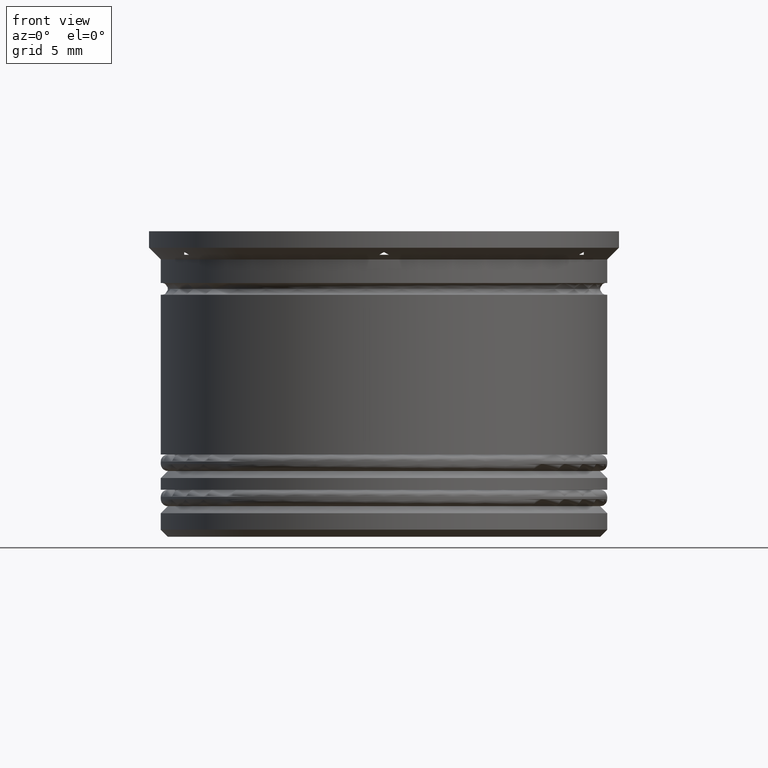
[diagram: clean part render]
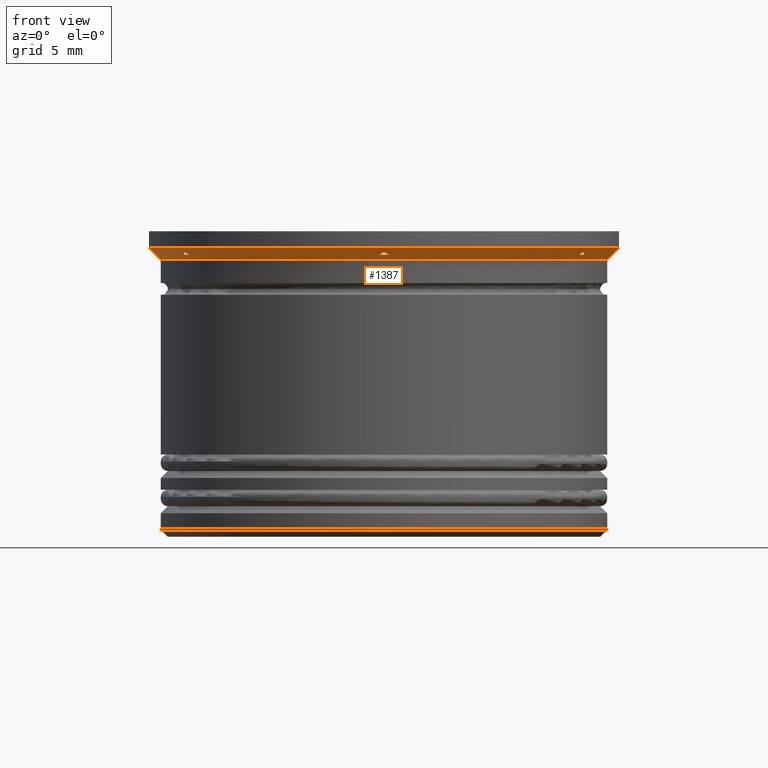
[diagram: same view with one face highlighted and labeled with its STEP entity id]
A machine part, front view. The second image highlights one B-rep face of the part: STEP entity #1387.
In plain terms, the highlighted conical surface has half-angle 45 deg.
Its self-contained STEP definition (entity closure, byte-faithful):
#5 = CARTESIAN_POINT ( 'NONE',  ( 0.000000000000000000, 0.000000000000000000, -1.199999999999999067 ) ) ;
#46 = CARTESIAN_POINT ( 'NONE',  ( -8.500000000000001776, -4.673328578219158480, -1.000000000000000000 ) ) ;
#47 = VECTOR ( 'NONE', #86, 1000.000000000000000 ) ;
#73 = ORIENTED_EDGE ( 'NONE', *, *, #1735, .F. ) ;
#84 = EDGE_CURVE ( 'NONE', #1053, #1356, #683, .T. ) ;
#86 = DIRECTION ( 'NONE',  ( 0.7071067811865487940, 0.000000000000000000, 0.7071067811865463515 ) ) ;
#90 = CARTESIAN_POINT ( 'NONE',  ( -8.500000000000001776, -4.907477288111819824, -0.8850454237763563103 ) ) ;
#93 = AXIS2_PLACEMENT_3D ( 'NONE', #1109, #1085, #1296 ) ;
#103 = CARTESIAN_POINT ( 'NONE',  ( -8.500000000000001776, -4.829775330622932294, -0.9238964025208137310 ) ) ;
#111 = DIRECTION ( 'NONE',  ( -0.7071067811865487940, 8.659560562354948882E-17, 0.7071067811865463515 ) ) ;
#148 = ORIENTED_EDGE ( 'NONE', *, *, #1124, .T. ) ;
#152 = DIRECTION ( 'NONE',  ( 1.000000000000000000, 0.000000000000000000, 0.000000000000000000 ) ) ;
#156 = CARTESIAN_POINT ( 'NONE',  ( 8.500000000000000000, -4.907477288111820712, -0.8850454237763569765 ) ) ;
#159 = VERTEX_POINT ( 'NONE', #46 ) ;
#162 = VERTEX_POINT ( 'NONE', #569 ) ;
#169 = CARTESIAN_POINT ( 'NONE',  ( -8.500000000000001776, -4.673328578219158480, -1.000000000000000000 ) ) ;
#185 = VERTEX_POINT ( 'NONE', #212 ) ;
#212 = CARTESIAN_POINT ( 'NONE',  ( 8.297221268969604324, -5.024551643058152273, -1.000000000000000000 ) ) ;
#249 = EDGE_CURVE ( 'NONE', #944, #159, #1692, .T. ) ;
#256 = AXIS2_PLACEMENT_3D ( 'NONE', #558, #772, #1777 ) ;
#292 = CARTESIAN_POINT ( 'NONE',  ( -9.499999999999998224, 1.163414459189985288E-15, -1.199999999999999067 ) ) ;
#315 = EDGE_CURVE ( 'NONE', #436, #185, #1554, .T. ) ;
#334 = CIRCLE ( 'NONE', #1286, 9.699999999999997513 ) ;
#364 = CARTESIAN_POINT ( 'NONE',  ( -0.06737994717715768689, -9.776052745582923365, -0.9239472544170721502 ) ) ;
#365 = ORIENTED_EDGE ( 'NONE', *, *, #649, .F. ) ;
#380 = ORIENTED_EDGE ( 'NONE', *, *, #607, .T. ) ;
#394 = ORIENTED_EDGE ( 'NONE', *, *, #1180, .T. ) ;
#422 = CARTESIAN_POINT ( 'NONE',  ( 10.00000000000000000, 0.000000000000000000, -0.6999999999999968470 ) ) ;
#436 = VERTEX_POINT ( 'NONE', #706 ) ;
#492 = EDGE_LOOP ( 'NONE', ( #885, #394, #891 ) ) ;
#499 = CARTESIAN_POINT ( 'NONE',  ( -8.365111701610439709, -4.985355083497564621, -0.9622312573273482661 ) ) ;
#514 = VERTEX_POINT ( 'NONE', #1442 ) ;
#536 = FACE_BOUND ( 'NONE', #1525, .T. ) ;
#547 = DIRECTION ( 'NONE',  ( 1.000000000000000000, 0.000000000000000000, 0.000000000000000000 ) ) ;
#558 = CARTESIAN_POINT ( 'NONE',  ( 0.000000000000000000, 0.000000000000000000, -1.000000000000000000 ) ) ;
#569 = CARTESIAN_POINT ( 'NONE',  ( 0.2027787310303974799, -9.697880221277310753, -1.000000000000000000 ) ) ;
#591 = VERTEX_POINT ( 'NONE', #1475 ) ;
#607 = EDGE_CURVE ( 'NONE', #162, #1595, #1630, .T. ) ;
#635 = DIRECTION ( 'NONE',  ( 1.000000000000000000, 0.000000000000000000, 0.000000000000000000 ) ) ;
#649 = EDGE_CURVE ( 'NONE', #2059, #159, #1819, .T. ) ;
#659 = CARTESIAN_POINT ( 'NONE',  ( 9.499999999999998224, 0.000000000000000000, -1.199999999999999067 ) ) ;
#665 = DIRECTION ( 'NONE',  ( -0.000000000000000000, -0.000000000000000000, 1.000000000000000000 ) ) ;
#675 = AXIS2_PLACEMENT_3D ( 'NONE', #2140, #2131, #635 ) ;
#683 = LINE ( 'NONE', #1360, #1519 ) ;
#692 = EDGE_CURVE ( 'NONE', #944, #2059, #1168, .T. ) ;
#706 = CARTESIAN_POINT ( 'NONE',  ( 8.500000000000000000, -4.907477288111820712, -0.8850454237763569765 ) ) ;
#720 = CARTESIAN_POINT ( 'NONE',  ( 0.000000000000000000, 0.000000000000000000, -0.6999999999999968470 ) ) ;
#734 = EDGE_CURVE ( 'NONE', #1238, #436, #1545, .T. ) ;
#772 = DIRECTION ( 'NONE',  ( -0.000000000000000000, -0.000000000000000000, -1.000000000000000000 ) ) ;
#821 = EDGE_CURVE ( 'NONE', #162, #514, #1135, .T. ) ;
#840 = CARTESIAN_POINT ( 'NONE',  ( -10.00000000000000000, 1.224646799147353256E-15, -0.6999999999999968470 ) ) ;
#850 = CARTESIAN_POINT ( 'NONE',  ( -8.432698576283277347, -4.946333783211516177, -0.9239019188760515533 ) ) ;
#868 = B_SPLINE_CURVE_WITH_KNOTS ( 'NONE', 3,
 ( #1057, #364, #1018, #1518 ),
 .UNSPECIFIED., .F., .F.,
 ( 4, 4 ),
 ( 0.008247477501769864827, 0.008508082499550510477 ),
 .UNSPECIFIED. ) ;
#884 = CARTESIAN_POINT ( 'NONE',  ( 0.1348882983895602905, -9.737076780837897516, -0.9622312573273488212 ) ) ;
#885 = ORIENTED_EDGE ( 'NONE', *, *, #734, .F. ) ;
#891 = ORIENTED_EDGE ( 'NONE', *, *, #315, .F. ) ;
#942 = ORIENTED_EDGE ( 'NONE', *, *, #84, .F. ) ;
#944 = VERTEX_POINT ( 'NONE', #1713 ) ;
#948 = LINE ( 'NONE', #422, #47 ) ;
#1018 = CARTESIAN_POINT ( 'NONE',  ( -0.1349689590794710126, -9.737030211366862531, -0.9622761304077310784 ) ) ;
#1022 = EDGE_CURVE ( 'NONE', #1717, #591, #948, .T. ) ;
#1037 = CIRCLE ( 'NONE', #93, 10.00000000000000000 ) ;
#1048 = DIRECTION ( 'NONE',  ( -0.000000000000000000, -0.000000000000000000, 1.000000000000000000 ) ) ;
#1053 = VERTEX_POINT ( 'NONE', #292 ) ;
#1057 = CARTESIAN_POINT ( 'NONE',  ( 8.334195073742550113E-16, -9.814954576223639648, -0.8850454237763576426 ) ) ;
#1077 = ORIENTED_EDGE ( 'NONE', *, *, #1403, .F. ) ;
#1085 = DIRECTION ( 'NONE',  ( -0.000000000000000000, -0.000000000000000000, 1.000000000000000000 ) ) ;
#1109 = CARTESIAN_POINT ( 'NONE',  ( 0.000000000000000000, 0.000000000000000000, -0.6999999999999968470 ) ) ;
#1120 = ORIENTED_EDGE ( 'NONE', *, *, #692, .F. ) ;
#1124 = EDGE_CURVE ( 'NONE', #1053, #1717, #2081, .T. ) ;
#1135 = B_SPLINE_CURVE_WITH_KNOTS ( 'NONE', 3,
 ( #1577, #884, #2048, #1395 ),
 .UNSPECIFIED., .F., .F.,
 ( 4, 4 ),
 ( 0.01822403315942614649, 0.01848585035615631089 ),
 .UNSPECIFIED. ) ;
#1144 = AXIS2_PLACEMENT_3D ( 'NONE', #5, #665, #1145 ) ;
#1145 = DIRECTION ( 'NONE',  ( 1.000000000000000000, 0.000000000000000000, 0.000000000000000000 ) ) ;
#1168 = B_SPLINE_CURVE_WITH_KNOTS ( 'NONE', 3,
 ( #1191, #499, #850, #1836 ),
 .UNSPECIFIED., .F., .F.,
 ( 4, 4 ),
 ( 0.01822403315942614302, 0.01848585035615631436 ),
 .UNSPECIFIED. ) ;
#1180 = EDGE_CURVE ( 'NONE', #1238, #185, #334, .T. ) ;
#1182 = CONICAL_SURFACE ( 'NONE', #2014, 10.00000000000000000, 0.7853981633974500554 ) ;
#1183 = CARTESIAN_POINT ( 'NONE',  ( 8.500000000000000000, -4.751647686047524743, -0.9622669149654717868 ) ) ;
#1191 = CARTESIAN_POINT ( 'NONE',  ( -8.297221268969604324, -5.024551643058148720, -1.000000000000000000 ) ) ;
#1238 = VERTEX_POINT ( 'NONE', #1938 ) ;
#1261 = CARTESIAN_POINT ( 'NONE',  ( 8.365031040920527516, -4.985401652968598718, -0.9622761304077309674 ) ) ;
#1286 = AXIS2_PLACEMENT_3D ( 'NONE', #1656, #1856, #152 ) ;
#1295 = CARTESIAN_POINT ( 'NONE',  ( 8.297221268969604324, -5.024551643058152273, -1.000000000000000000 ) ) ;
#1296 = DIRECTION ( 'NONE',  ( -1.000000000000000000, 0.000000000000000000, 0.000000000000000000 ) ) ;
#1356 = VERTEX_POINT ( 'NONE', #840 ) ;
#1360 = CARTESIAN_POINT ( 'NONE',  ( -10.00000000000000000, 1.224646799147353256E-15, -0.6999999999999968470 ) ) ;
#1376 = FACE_BOUND ( 'NONE', #1788, .T. ) ;
#1387 = ADVANCED_FACE ( 'NONE', ( #1844, #1548, #536, #1376 ), #1182, .T. ) ;
#1395 = CARTESIAN_POINT ( 'NONE',  ( 8.334195073742550113E-16, -9.814954576223639648, -0.8850454237763576426 ) ) ;
#1403 = EDGE_CURVE ( 'NONE', #514, #1595, #868, .T. ) ;
#1442 = CARTESIAN_POINT ( 'NONE',  ( 8.334195073742550113E-16, -9.814954576223639648, -0.8850454237763576426 ) ) ;
#1475 = CARTESIAN_POINT ( 'NONE',  ( 10.00000000000000000, 0.000000000000000000, -0.6999999999999968470 ) ) ;
#1518 = CARTESIAN_POINT ( 'NONE',  ( -0.2027787310303940105, -9.697880221277308976, -1.000000000000000000 ) ) ;
#1519 = VECTOR ( 'NONE', #111, 1000.000000000000000 ) ;
#1525 = EDGE_LOOP ( 'NONE', ( #2024, #380, #1077 ) ) ;
#1545 = B_SPLINE_CURVE_WITH_KNOTS ( 'NONE', 3,
 ( #1658, #1183, #1850, #156 ),
 .UNSPECIFIED., .F., .F.,
 ( 4, 4 ),
 ( 0.01704092202293524053, 0.01730192662281649155 ),
 .UNSPECIFIED. ) ;
#1548 = FACE_BOUND ( 'NONE', #492, .T. ) ;
#1554 = B_SPLINE_CURVE_WITH_KNOTS ( 'NONE', 3,
 ( #2125, #2112, #1261, #1295 ),
 .UNSPECIFIED., .F., .F.,
 ( 4, 4 ),
 ( 0.008247477501769864827, 0.008508082499550513947 ),
 .UNSPECIFIED. ) ;
#1577 = CARTESIAN_POINT ( 'NONE',  ( 0.2027787310303974799, -9.697880221277310753, -1.000000000000000000 ) ) ;
#1595 = VERTEX_POINT ( 'NONE', #1674 ) ;
#1607 = CARTESIAN_POINT ( 'NONE',  ( -8.500000000000001776, -4.907477288111819824, -0.8850454237763563103 ) ) ;
#1630 = CIRCLE ( 'NONE', #675, 9.699999999999997513 ) ;
#1656 = CARTESIAN_POINT ( 'NONE',  ( 0.000000000000000000, 0.000000000000000000, -1.000000000000000000 ) ) ;
#1658 = CARTESIAN_POINT ( 'NONE',  ( 8.500000000000000000, -4.673328578219161145, -1.000000000000000000 ) ) ;
#1674 = CARTESIAN_POINT ( 'NONE',  ( -0.2027787310303940105, -9.697880221277308976, -1.000000000000000000 ) ) ;
#1692 = CIRCLE ( 'NONE', #256, 9.699999999999997513 ) ;
#1713 = CARTESIAN_POINT ( 'NONE',  ( -8.297221268969604324, -5.024551643058148720, -1.000000000000000000 ) ) ;
#1717 = VERTEX_POINT ( 'NONE', #659 ) ;
#1735 = EDGE_CURVE ( 'NONE', #1356, #591, #1037, .T. ) ;
#1777 = DIRECTION ( 'NONE',  ( 1.000000000000000000, 2.842170943040400743E-14, 0.000000000000000000 ) ) ;
#1788 = EDGE_LOOP ( 'NONE', ( #1120, #1923, #365 ) ) ;
#1819 = B_SPLINE_CURVE_WITH_KNOTS ( 'NONE', 3,
 ( #1607, #103, #1857, #169 ),
 .UNSPECIFIED., .F., .F.,
 ( 4, 4 ),
 ( 0.007081054265521766720, 0.007339969732947483096 ),
 .UNSPECIFIED. ) ;
#1821 = EDGE_LOOP ( 'NONE', ( #942, #148, #1975, #73 ) ) ;
#1836 = CARTESIAN_POINT ( 'NONE',  ( -8.500000000000001776, -4.907477288111819824, -0.8850454237763563103 ) ) ;
#1844 = FACE_OUTER_BOUND ( 'NONE', #1821, .T. ) ;
#1850 = CARTESIAN_POINT ( 'NONE',  ( 8.500000000000000000, -4.829692282531617309, -0.9239379265664597884 ) ) ;
#1856 = DIRECTION ( 'NONE',  ( -0.000000000000000000, -0.000000000000000000, -1.000000000000000000 ) ) ;
#1857 = CARTESIAN_POINT ( 'NONE',  ( -8.500000000000001776, -4.751733060314974999, -0.9622257828001224977 ) ) ;
#1923 = ORIENTED_EDGE ( 'NONE', *, *, #249, .T. ) ;
#1938 = CARTESIAN_POINT ( 'NONE',  ( 8.500000000000000000, -4.673328578219161145, -1.000000000000000000 ) ) ;
#1975 = ORIENTED_EDGE ( 'NONE', *, *, #1022, .T. ) ;
#2014 = AXIS2_PLACEMENT_3D ( 'NONE', #720, #1048, #547 ) ;
#2024 = ORIENTED_EDGE ( 'NONE', *, *, #821, .F. ) ;
#2048 = CARTESIAN_POINT ( 'NONE',  ( 0.06730142371672512280, -9.776098081123942407, -0.9239019188760531076 ) ) ;
#2059 = VERTEX_POINT ( 'NONE', #90 ) ;
#2081 = CIRCLE ( 'NONE', #1144, 9.499999999999998224 ) ;
#2112 = CARTESIAN_POINT ( 'NONE',  ( 8.432620052822841217, -4.946379118752536108, -0.9239472544170723722 ) ) ;
#2125 = CARTESIAN_POINT ( 'NONE',  ( 8.500000000000000000, -4.907477288111820712, -0.8850454237763569765 ) ) ;
#2131 = DIRECTION ( 'NONE',  ( -0.000000000000000000, -0.000000000000000000, -1.000000000000000000 ) ) ;
#2140 = CARTESIAN_POINT ( 'NONE',  ( 0.000000000000000000, 0.000000000000000000, -1.000000000000000000 ) ) ;